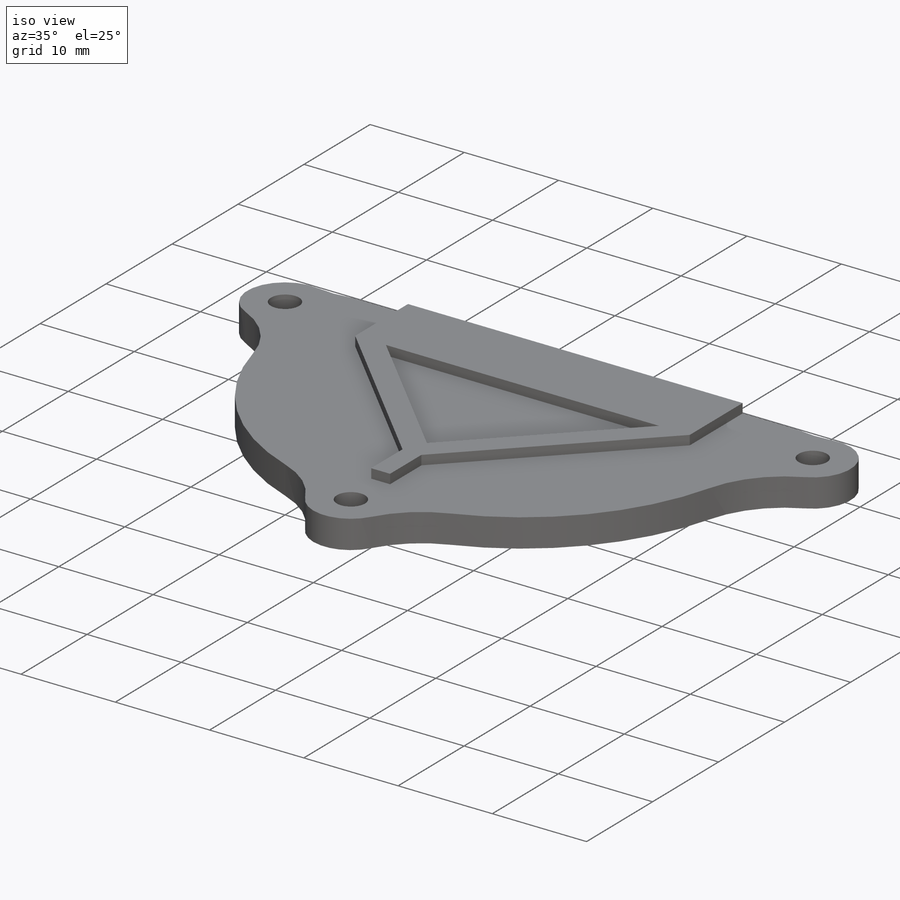
[diagram: iso view]
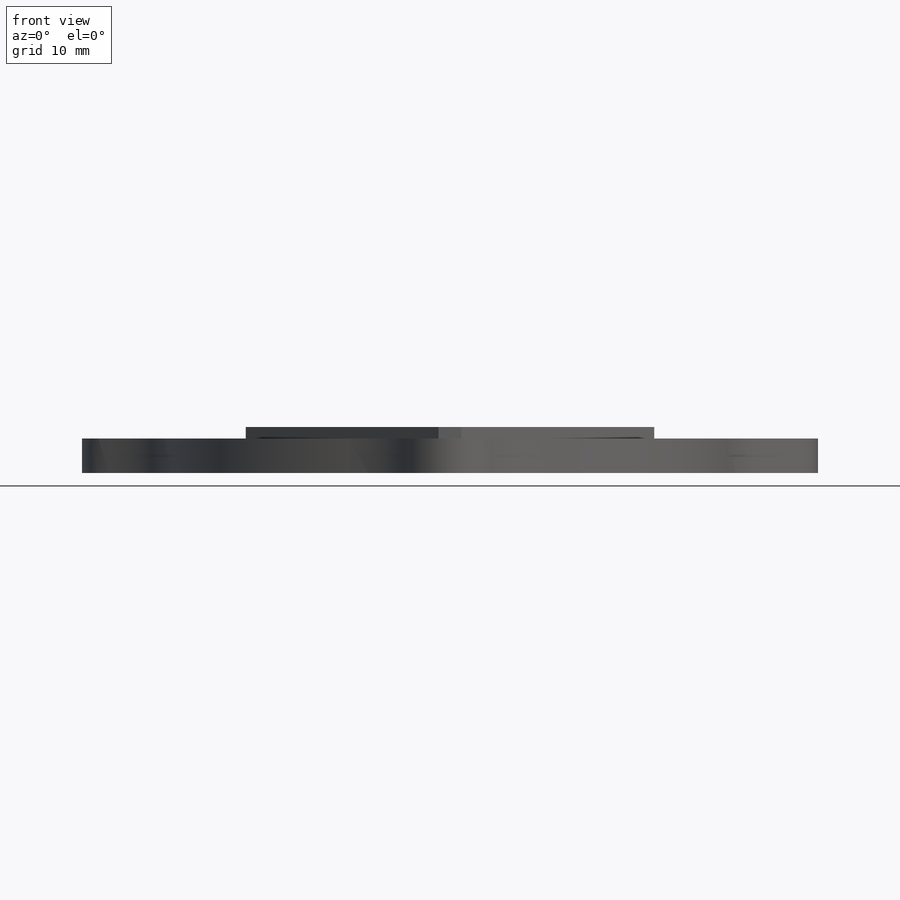
[diagram: front view]
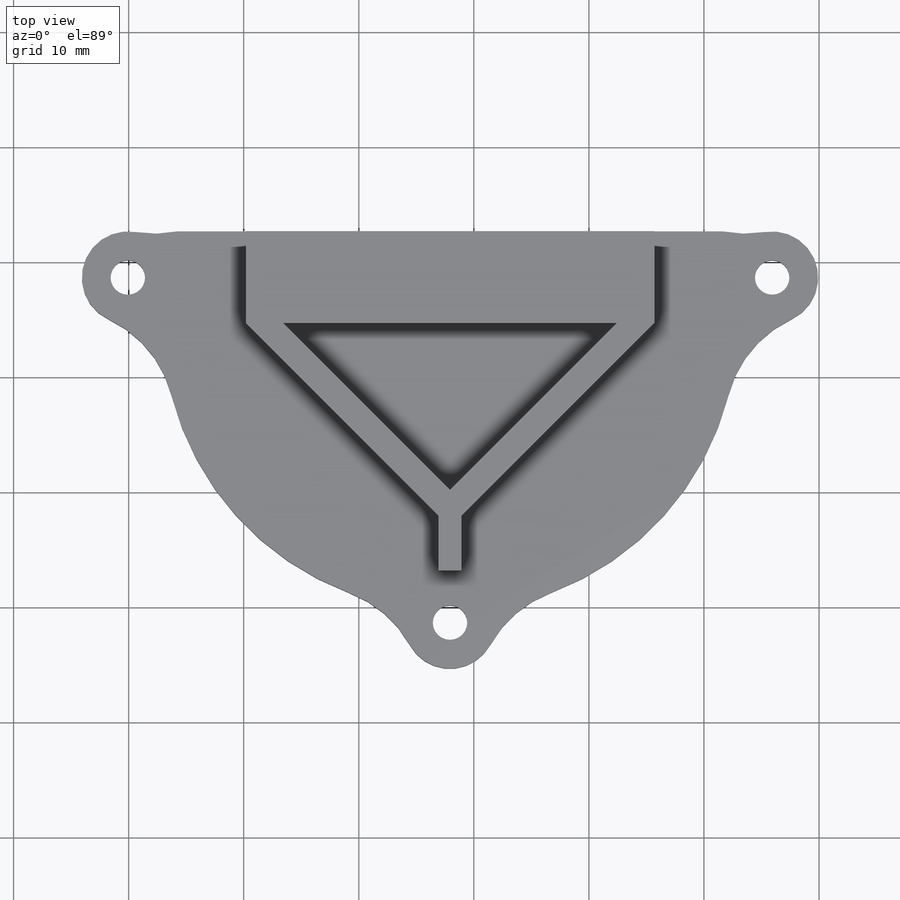
[diagram: top view]
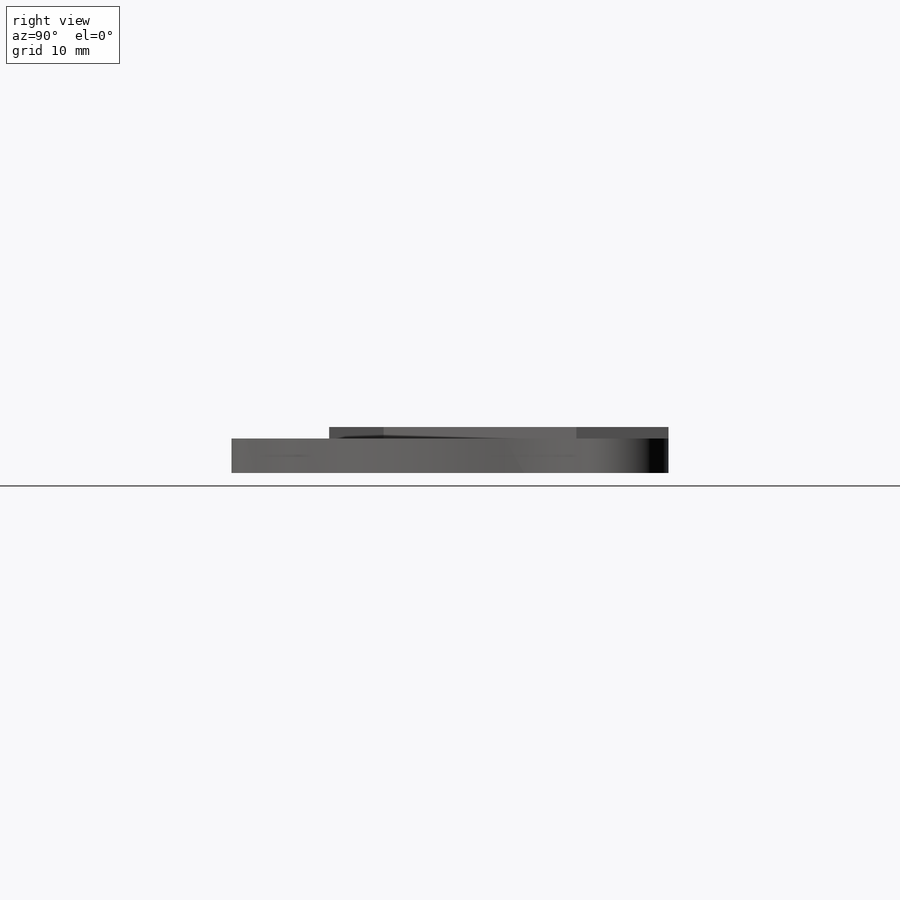
[diagram: right view]
SOLIDWORKS PART (.sldprt)
format: sldprt  version: not decoded by parser v0  size: 2,834,944 bytes
history: native  units: mm
features: sketch x55, extrude x32, cut_extrude x23, fillet x16, mirror x4, plane x3, pattern_circular x3, material x1 (+9 scaffold rows collapsed)
feature tree (146):
  scaffold x9  (default folders/planes/origin — collapsed)
  material  "材质 <未指定>"
  plane  "前视基准面"
  plane  "上视基准面"
  plane  "右视基准面"
  sketch  "草图1"  dims[D1=50.0mm D4=3.0mm D2=18.0mm D3=18.0mm]
  extrude  "凸台-拉伸2"  Depth=1mm
  sketch  "草图2"  dims[D2=3.0mm D1=18.0mm]
  cut_extrude  "切除-拉伸1"  Depth=1mm
  pattern_circular  "阵列(圆周)1"  Count=8 Angle=360deg
  sketch  "草图3"  dims[c1.D1=21.5mm c1.D2=~14.620838mm c2.D2=45.0deg c2.D3=21.5mm c2.D4=~15.202796mm c3.D4=45.0deg c4.D4=36.0mm]
  cut_extrude  "切除-拉伸2"  Depth=1mm
  sketch  "草图4"  dims[D1=0.25mm]
  extrude  "凸台-拉伸3"  Depth=1mm
  sketch  "草图5"
  extrude  "凸台-拉伸5"  Depth=2mm
  sketch  "草图6"  dims[D1=3.0mm]
  cut_extrude  "切除-拉伸3"  Depth=2mm
  pattern_circular  "阵列(圆周)2"  Count=8 Angle=360deg
  sketch  "草图7"
  sketch  "草图8"  dims[D1=5.5mm]
  extrude  "凸台-拉伸6"  Depth=2mm
  cut_extrude  "切除-拉伸4"  Depth=2mm
  pattern_circular  "阵列(圆周)3"  Count=8 Angle=360deg
  sketch  "草图9"
  extrude  "凸台-拉伸8"  Depth=2mm
  sketch  "草图11"
  extrude  "凸台-拉伸11"  Depth=5mm
  sketch  "草图12"  dims[c1.D1=18.0mm c1.D2=18.0mm c1.D3=6.0mm c1.D4=6.0mm c1.D5=8.0mm c1.D6=8.0mm c1.D7=35.0mm c1.D8=4.0mm c2.D7=32.0mm c2.D8=4.0mm c3.D7=26.0mm c3.D1=18.0mm]
  extrude  "凸台-拉伸12"  Depth=5mm
  sketch  "草图13"  dims[D1=18.0mm D2=10.0mm D3=1.9mm]
  extrude  "凸台-拉伸13"  Depth=8mm
  sketch  "草图14"
  extrude  "凸台-拉伸14"  Depth=5mm
  sketch  "草图15"
  extrude  "凸台-拉伸15"  Depth=8mm
  sketch  "草图16"  dims[D1=18.0mm D2=1.9mm]
  extrude  "凸台-拉伸16"  Depth=8mm
  sketch  "草图17"
  extrude  "凸台-拉伸17"  Depth=8mm
  sketch  "草图18"
  extrude  "凸台-拉伸18"  Depth=8mm
  sketch  "草图19"
  extrude  "凸台-拉伸19"  Depth=5mm
  sketch  "草图20"
  extrude  "凸台-拉伸20"  Depth=5mm
  sketch  "草图22"
  cut_extrude  "切除-拉伸5"  Depth=1mm
  mirror  "镜向3"
  sketch  "草图23"
  cut_extrude  "切除-拉伸6"  Depth=1mm
  mirror  "镜向4"
  sketch  "草图26"  dims[D1=0.0mm]
  extrude  "凸台-拉伸21"  Depth=5mm
  fillet  "圆角1"  Radius=10mm
  fillet  "圆角2"  Radius=10mm
  fillet  "圆角3"  Radius=10mm
  fillet  "圆角4"  Radius=10mm
  sketch  "草图29"  dims[D1=3.0mm D2=3.0mm D3=3.0mm]
  cut_extrude  "切除-拉伸7"  Depth=13mm
  sketch  "草图30"  dims[D1=5.5mm D2=5.5mm D3=5.5mm]
  cut_extrude  "切除-拉伸8"  Depth=2.5mm
  sketch  "草图32"
  extrude  "凸台-拉伸22"  Depth=1mm
  sketch  "草图33"
  extrude  "凸台-拉伸23"  Depth=1mm
  mirror  "镜向5"
  sketch  "草图35"
  extrude  "凸台-拉伸24"  Depth=1mm
  sketch  "草图37"  dims[c1.D1=3.0mm c1.D2=2.5mm c1.D3=4.15mm c2.D1=2.5mm c2.D2=4.15mm]
  sketch  "草图38"
  extrude  "凸台-拉伸26"  Depth=1.8mm
  cut_extrude  "切除-拉伸9"  Depth=1.8mm
  sketch  "草图39"  dims[D1=2.0mm D2=2.0mm]
  cut_extrude  "切除-拉伸10"  Depth=1.8mm
  fillet  "圆角5"  Radius=10mm
  mirror  "镜向9"
  sketch  "草图40"  dims[D1=3.0mm D2=2.5mm D3=2.5mm D4=4.15mm D5=4.15mm]
  cut_extrude  "切除-拉伸11"  Depth=2mm
  sketch  "草图41"  dims[D1=2.0mm]
  sketch  "草图42"  dims[D1=2.0mm]
  cut_extrude  "切除-拉伸12"  Depth=2mm
  cut_extrude  "切除-拉伸13"  Depth=2mm
  sketch  "草图43"
  cut_extrude  "切除-拉伸14"  Depth=2mm
  fillet  "圆角6"  Radius=10mm
  sketch  "草图44"  dims[D1=50.0mm D6=8.0mm D2=18.0mm D3=6.0mm D4=8.0mm D5=4.0mm]
  extrude  "凸台-拉伸27"  Depth=2mm
  sketch  "草图45"  dims[D1=18.0mm D2=6.0mm D3=8.0mm D4=4.0mm]
  extrude  "凸台-拉伸28"  Depth=2mm
  sketch  "草图46"  dims[D1=3.0mm]
  cut_extrude  "切除-拉伸15"  Depth=2mm
  sketch  "草图47"  dims[D1=18.0mm D2=6.0mm D3=8.0mm D4=4.0mm]
  extrude  "凸台-拉伸29"  Depth=2mm
  sketch  "草图48"  dims[D1=3.0mm D3=8.0mm D2=26.0mm]
  extrude  "凸台-拉伸30"  Depth=2mm
  sketch  "草图49"  dims[D1=3.0mm]
  cut_extrude  "切除-拉伸16"  Depth=2mm
  sketch  "草图50"  dims[D1=3.0mm]
  cut_extrude  "切除-拉伸17"  Depth=2mm
  sketch  "草图51"  dims[c1.D1=18.0mm c1.D2=18.0mm c1.D3=21.0mm c1.D4=21.0mm c2.D3=21.0mm c2.D4=21.0mm c2.D5=21.0mm c3.D5=45.0deg c3.D6=26.0mm c4.D6=45.0deg c5.D6=26.0mm c5.D1=18.0mm c5.D2=17.75mm c6.D1=17.0mm c6.D5=17.75mm c7.D1=21.0mm c7.D2=~17.595401mm c8.D2=45.0deg c8.D3=21.0mm c8.D4=21.0mm c9.D4=45.0deg c10.D4=~14.849242mm c10.D2=17.75mm c11.D4=17.75mm]
  extrude  "凸台-拉伸31"  Depth=1mm
  sketch  "草图52"
  cut_extrude  "切除-拉伸18"  Depth=2mm
  fillet  "圆角7"  Radius=10mm
  sketch  "草图53"
  cut_extrude  "切除-拉伸19"  Depth=1mm
  fillet  "圆角8"  Radius=1mm
  sketch  "草图54"
  cut_extrude  "切除-拉伸20"  Depth=1mm
  fillet  "圆角9"  Radius=1mm
  sketch  "草图55"
  cut_extrude  "切除-拉伸21"  Depth=1mm
  fillet  "圆角10"  Radius=1mm
  sketch  "草图57"
  extrude  "凸台-拉伸32"  Depth=2mm
  fillet  "圆角11"  Radius=1mm
  fillet  "圆角12"  Radius=1mm
  fillet  "圆角13"  Radius=1mm
  sketch  "草图58"  dims[c1.D1=20.5mm c1.D2=~13.131894mm c2.D2=45.0deg c2.D3=~19.866795mm c3.D3=45.0deg]
  extrude  "凸台-拉伸33"  Depth=1mm
  sketch  "草图60"  dims[D1=1.0mm D2=1.0mm D3=1.0mm D4=1.0mm]
  extrude  "凸台-拉伸34"  Depth=8mm
  sketch  "草图61"
  extrude  "凸台-拉伸35"  Depth=5mm
  sketch  "草图63"  dims[c1.D1=20.5mm c1.D2=20.5mm c2.D2=45.0deg c2.D3=~18.634594mm c3.D3=45.0deg c3.D4=20.5mm]
  extrude  "凸台-拉伸36"  Depth=1mm
  sketch  "草图65"  dims[D1=1.0mm]
  extrude  "凸台-拉伸39"  Depth=8mm
  fillet  "圆角15"  Radius=1mm
  sketch  "草图67"  dims[D1=1.0mm D2=1.0mm D3=7.0mm]
  extrude  "凸台-拉伸40"  Depth=1mm
  fillet  "圆角16"  Radius=2mm
  fillet  "圆角17"  Radius=2mm
  sketch  "草图68"
  cut_extrude  "切除-拉伸22"  Depth=20mm
  sketch  "草图69"
  cut_extrude  "切除-拉伸23"  Depth=1mm
decode coverage: 104 of 133 modeling features carry decoded parameters
note: ~ marks probable driven/reference dimensions
note: suppression state not decoded; provenance and decode notes live in map.json
